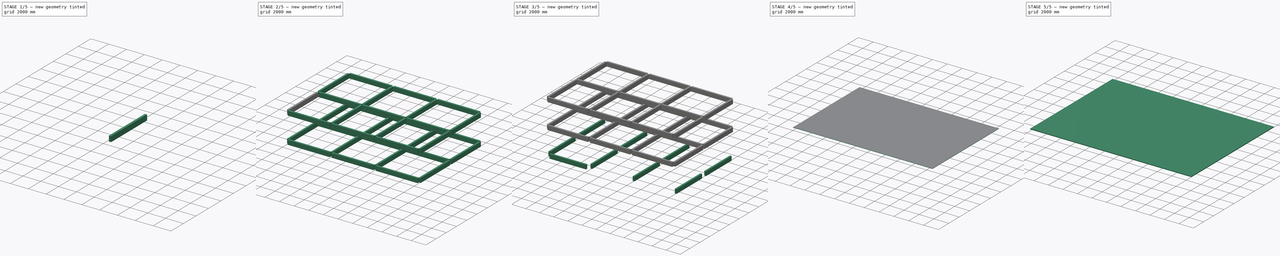
[diagram: build sequence overview — one tinted view per stage of 5, left to right]
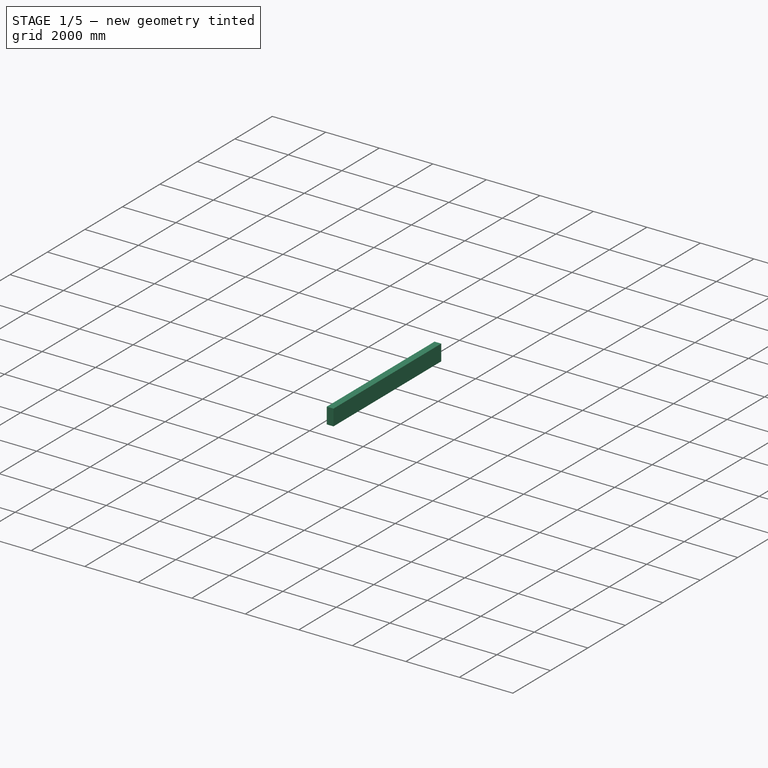
[diagram: stage 1 of 5 — iso view after this stage's code; geometry added in this stage tinted green]
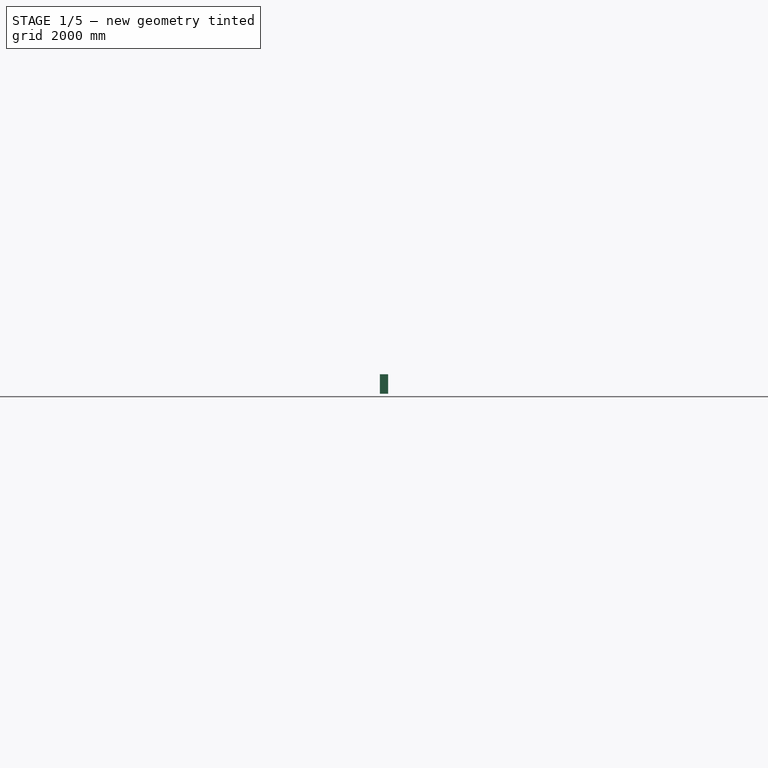
[diagram: stage 1 of 5 — front view after this stage's code; geometry added in this stage tinted green]
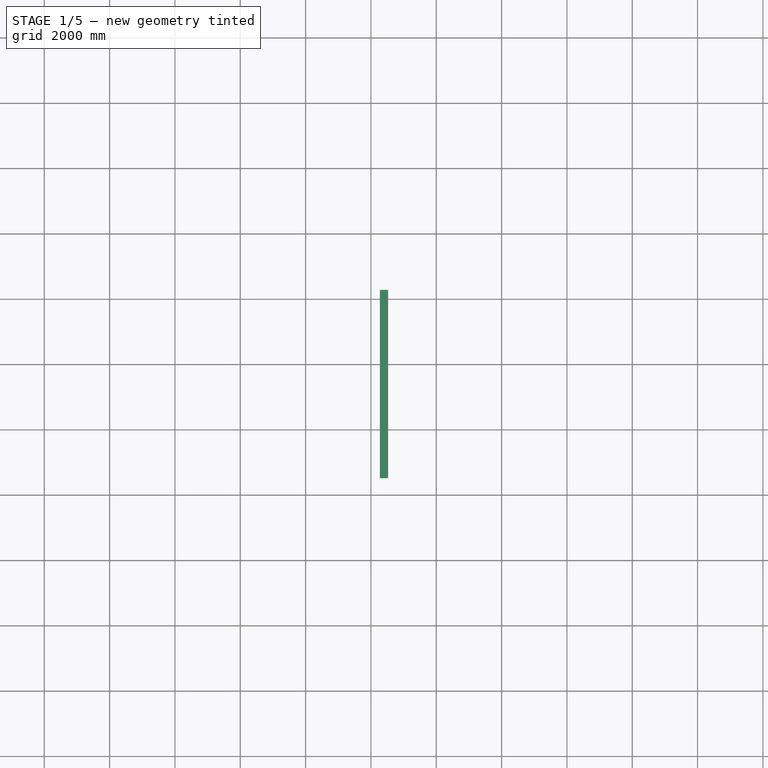
[diagram: stage 1 of 5 — top view after this stage's code; geometry added in this stage tinted green]
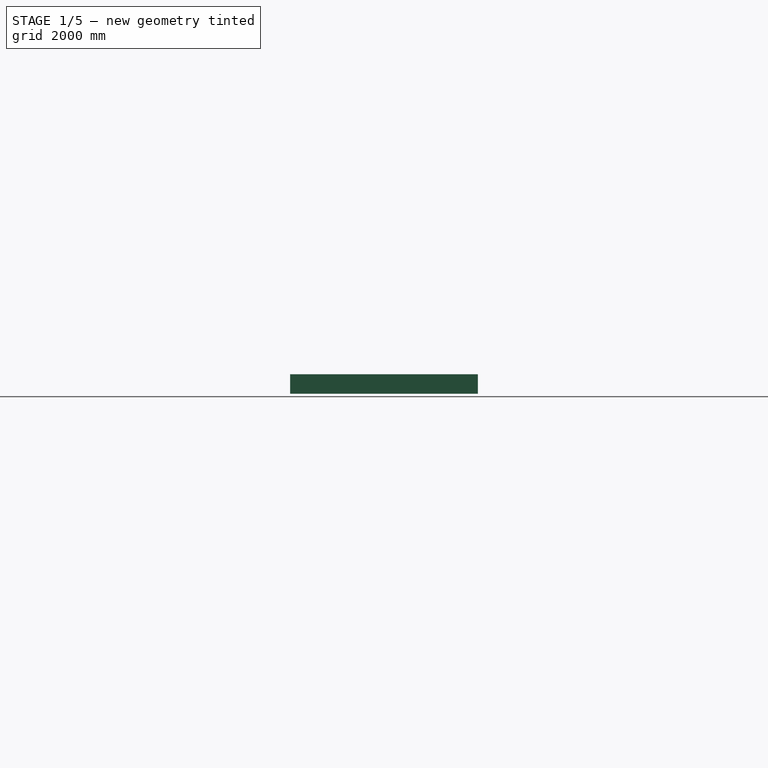
[diagram: stage 1 of 5 — right view after this stage's code; geometry added in this stage tinted green]
FCSTD DOCUMENT  (FreeCAD 0.16R6712 (Git))
Label: DOMINO_HOUSE_02
License: All rights reserved
LicenseURL: http://en.wikipedia.org/wiki/All_rights_reserved
objects: Sketcher::SketchObject×9, Part::Extrusion×9, Part::FeaturePython×6, Part::MultiFuse×3
note: 27 computed .brp shape members not serialized (recipe doc carries the construction recipe); baked Part::Feature solids carry a one-line shape summary decoded from their .brp

FEATURE [Sketcher::SketchObject] Sketch  label="BLOCO"
  sketch-geometry (4):
    g0: LineSegment StartX=0 StartY=0 StartZ=0 EndX=800 EndY=0 EndZ=0
    g1: LineSegment StartX=800 StartY=0 StartZ=0 EndX=800 EndY=800 EndZ=0
    g2: LineSegment StartX=800 StartY=800 StartZ=0 EndX=0 EndY=800 EndZ=0
    g3: LineSegment StartX=0 StartY=800 StartZ=0 EndX=0 EndY=0 EndZ=0
  constraints (11):
    c: Coincident(g0,g1)
    c: Coincident(g1,g2)
    c: Coincident(g2,g3)
    c: Coincident(g3,g0)
    c: Horizontal(g0)
    c: Horizontal(g2)
    c: Vertical(g1)
    c: Vertical(g3)
    c: Coincident(g0,g-1)
    c: Equal(g3,g0)
    c: Distance(g0) = 800
FEATURE [Part::Extrusion] Extrude_Sketch  label="BLOCO_Extrude"
  Base = -> Sketch
  Dir = (0,0,600)
  Solid = true
FEATURE [Sketcher::SketchObject] Sketch001  label="PILAR"
  ExternalGeometry = -> [Extrude_Sketch]
  Placement = pos=(0,0,600) rot=(0,0,1;0rad)
  sketch-geometry (6):
    g0: LineSegment StartX=275 StartY=525 StartZ=0 EndX=525 EndY=525 EndZ=0
    g1: LineSegment StartX=525 StartY=525 StartZ=0 EndX=525 EndY=275 EndZ=0
    g2: LineSegment StartX=525 StartY=275 StartZ=0 EndX=275 EndY=275 EndZ=0
    g3: LineSegment StartX=275 StartY=275 StartZ=0 EndX=275 EndY=525 EndZ=0
    g4: Circle [constr] CenterX=400 CenterY=400 CenterZ=0 NormalX=0 NormalY=0 NormalZ=1 Radius=125
    g5: Circle [constr] CenterX=400 CenterY=400 CenterZ=0 NormalX=0 NormalY=0 NormalZ=1 Radius=400
  constraints (17):
    c: Coincident(g0,g1)
    c: Coincident(g1,g2)
    c: Coincident(g2,g3)
    c: Coincident(g3,g0)
    c: Horizontal(g0)
    c: Horizontal(g2)
    c: Vertical(g1)
    c: Vertical(g3)
    c: Equal(g3,g2)
    c: Distance(g2) = 250
    c: Coincident(g4,g5)
    c: Tangent(g4,g0)
    c: Tangent(g4,g3)
    c: Tangent(g4,g2)
    c: Tangent(g5,g-3)
    c: Tangent(g5,g-4)
    c: Tangent(g5,g-5)
FEATURE [Part::Extrusion] Extrude_Sketch001  label="PILAR_Extrude"
  Base = -> Sketch001
  Dir = (0,0,3600)
  Solid = true
FEATURE [Part::FeaturePython] Array001  # Draft array (typed FeaturePython)
  Angle = 360
  ArrayType = 0
  Axis = (0,0,1)
  Base = -> Extrude_Sketch001
  Center = (0,0,0)
  Fuse = true
  IntervalAxis = (0,0,0)
  IntervalX = (6000,0,0)
  IntervalY = (0,6000,0)
  IntervalZ = (0,0,3600)
  NumberPolar = 1
  NumberX = 4
  NumberY = 3
  NumberZ = 2
FEATURE [Sketcher::SketchObject] Sketch005  label="VIGA-Y"
  ExternalGeometry = -> [Array001]
  Placement = pos=(0,525,0) rot=(0,0.707107,0.707107;3.14159rad)
  Support = -> Array001 [Face14]
  sketch-geometry (4):
    g0: LineSegment StartX=-525 StartY=7800 StartZ=0 EndX=-275 EndY=7800 EndZ=0
    g1: LineSegment StartX=-275 StartY=7800 StartZ=0 EndX=-275 EndY=7200 EndZ=0
    g2: LineSegment StartX=-275 StartY=7200 StartZ=0 EndX=-525 EndY=7200 EndZ=0
    g3: LineSegment StartX=-525 StartY=7200 StartZ=0 EndX=-525 EndY=7800 EndZ=0
  constraints (11):
    c: Coincident(g0,g1)
    c: Coincident(g1,g2)
    c: Coincident(g2,g3)
    c: Coincident(g3,g0)
    c: Horizontal(g0)
    c: Horizontal(g2)
    c: Vertical(g1)
    c: Vertical(g3)
    c: Coincident(g-3,g0)
    c: Coincident(g-3,g0)
    c: Distance(g3) = 600
FEATURE [Part::Extrusion] Extrude_Sketch005  label="VIGA-Y_Extrude"
  Base = -> Sketch005
  Dir = (0,5750,0)
  Solid = true
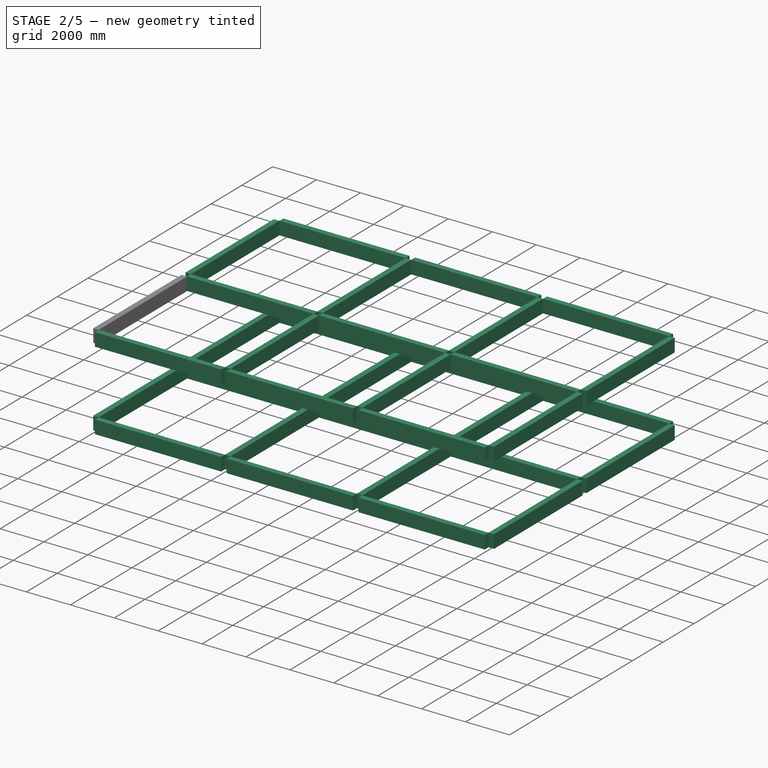
[diagram: stage 2 of 5 — iso view after this stage's code; geometry added in this stage tinted green]
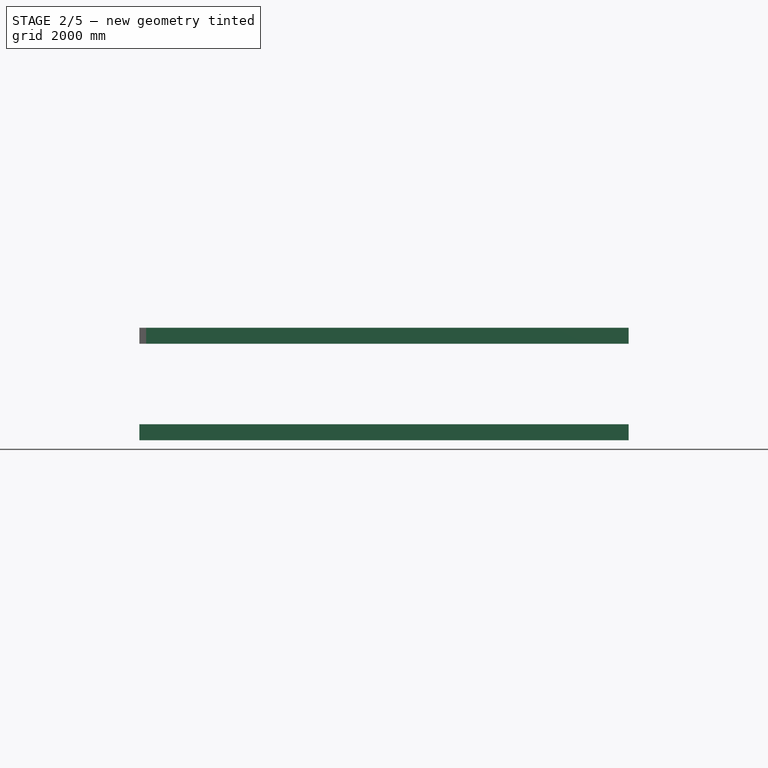
[diagram: stage 2 of 5 — front view after this stage's code; geometry added in this stage tinted green]
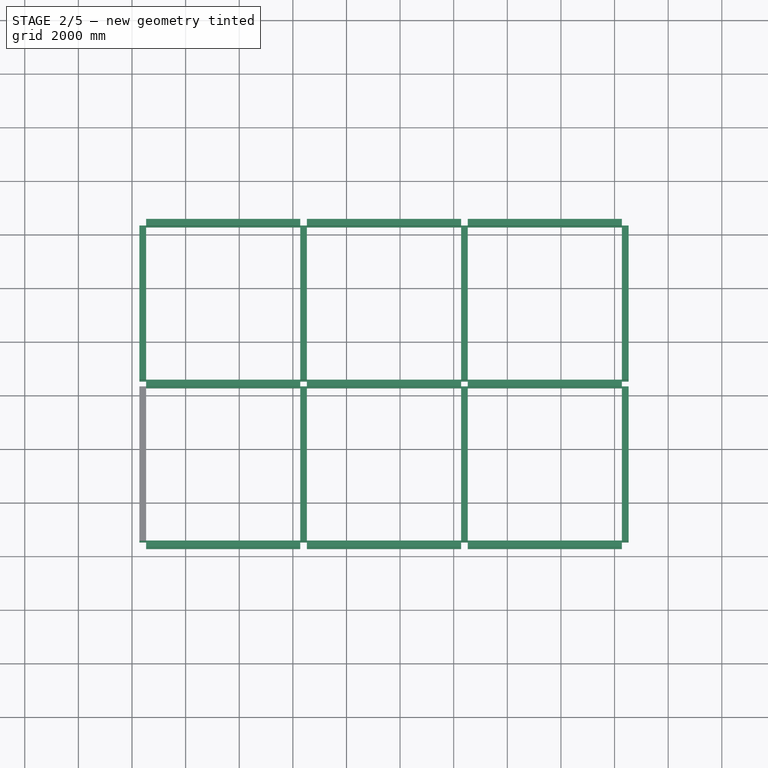
[diagram: stage 2 of 5 — top view after this stage's code; geometry added in this stage tinted green]
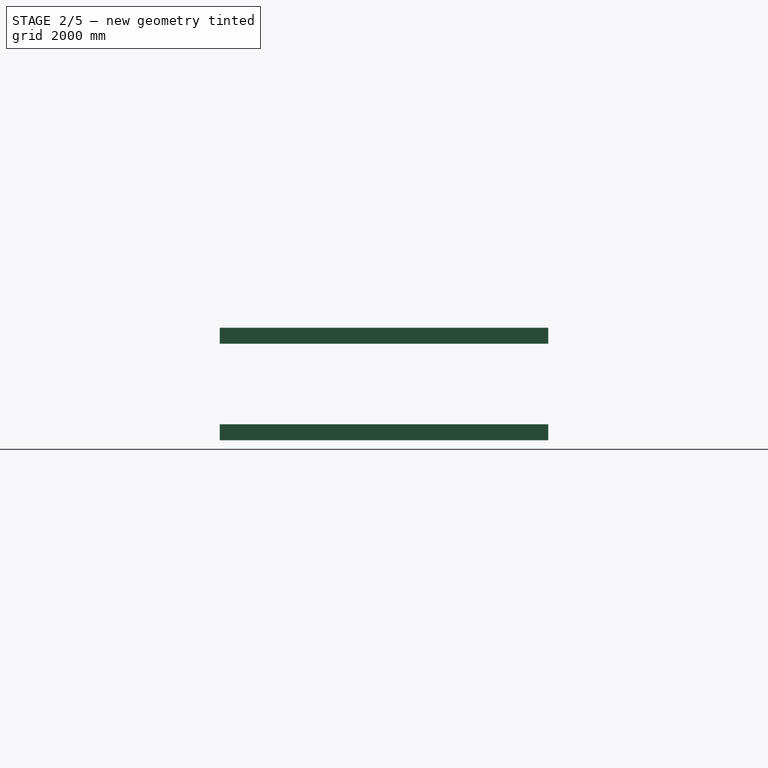
[diagram: stage 2 of 5 — right view after this stage's code; geometry added in this stage tinted green]
FEATURE [Sketcher::SketchObject] Sketch004  label="VIGA-X"
  ExternalGeometry = -> [Array001]
  Placement = pos=(525,0,0) rot=(0.57735,0.57735,0.57735;2.0944rad)
  Support = -> Array001 [Face16]
  sketch-geometry (4):
    g0: LineSegment StartX=275 StartY=7800 StartZ=0 EndX=525 EndY=7800 EndZ=0
    g1: LineSegment StartX=525 StartY=7800 StartZ=0 EndX=525 EndY=7200 EndZ=0
    g2: LineSegment StartX=525 StartY=7200 StartZ=0 EndX=275 EndY=7200 EndZ=0
    g3: LineSegment StartX=275 StartY=7200 StartZ=0 EndX=275 EndY=7800 EndZ=0
  constraints (11):
    c: Coincident(g0,g1)
    c: Coincident(g1,g2)
    c: Coincident(g2,g3)
    c: Coincident(g3,g0)
    c: Horizontal(g0)
    c: Horizontal(g2)
    c: Vertical(g1)
    c: Vertical(g3)
    c: Coincident(g0,g-3)
    c: Coincident(g-3,g0)
    c: Distance(g3) = 600
FEATURE [Part::Extrusion] Extrude_Sketch004  label="VIGA-X001"
  Base = -> Sketch004
  Dir = (5750,0,0)
  Solid = true
FEATURE [Part::FeaturePython] Array004  # Draft array (typed FeaturePython)
  Angle = 360
  ArrayType = 0
  Axis = (0,0,1)
  Base = -> Extrude_Sketch004
  Center = (0,0,0)
  Fuse = true
  IntervalAxis = (0,0,0)
  IntervalX = (6000,0,0)
  IntervalY = (0,6000,0)
  IntervalZ = (0,0,-3600)
  NumberPolar = 1
  NumberX = 3
  NumberY = 3
  NumberZ = 2
FEATURE [Part::FeaturePython] Array005  # Draft array (typed FeaturePython)
  Angle = 360
  ArrayType = 0
  Axis = (0,0,1)
  Base = -> Extrude_Sketch005
  Center = (0,0,0)
  Fuse = false
  IntervalAxis = (0,0,0)
  IntervalX = (6000,0,0)
  IntervalY = (0,6000,0)
  IntervalZ = (0,0,-3600)
  NumberPolar = 1
  NumberX = 4
  NumberY = 2
  NumberZ = 2
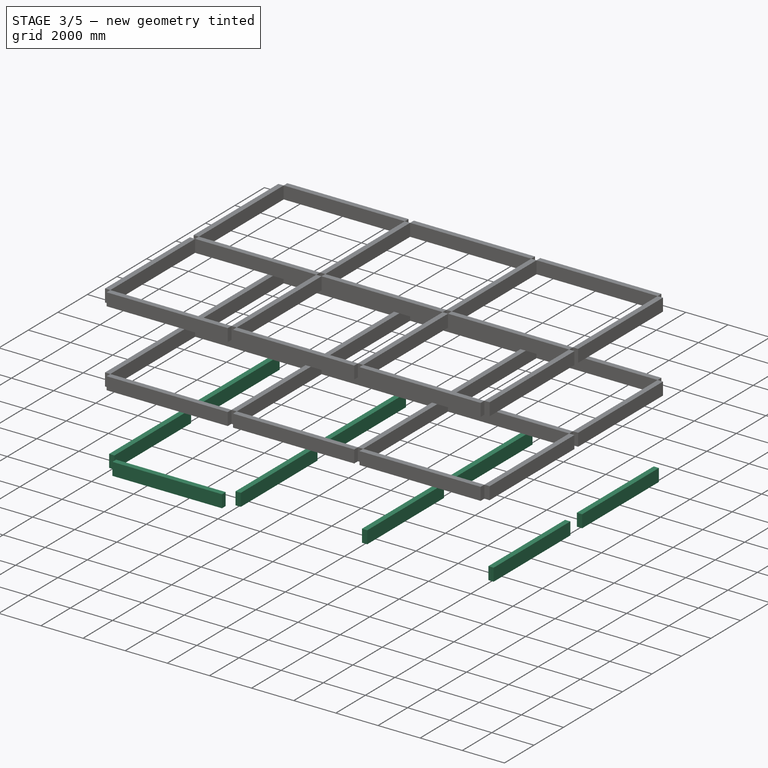
[diagram: stage 3 of 5 — iso view after this stage's code; geometry added in this stage tinted green]
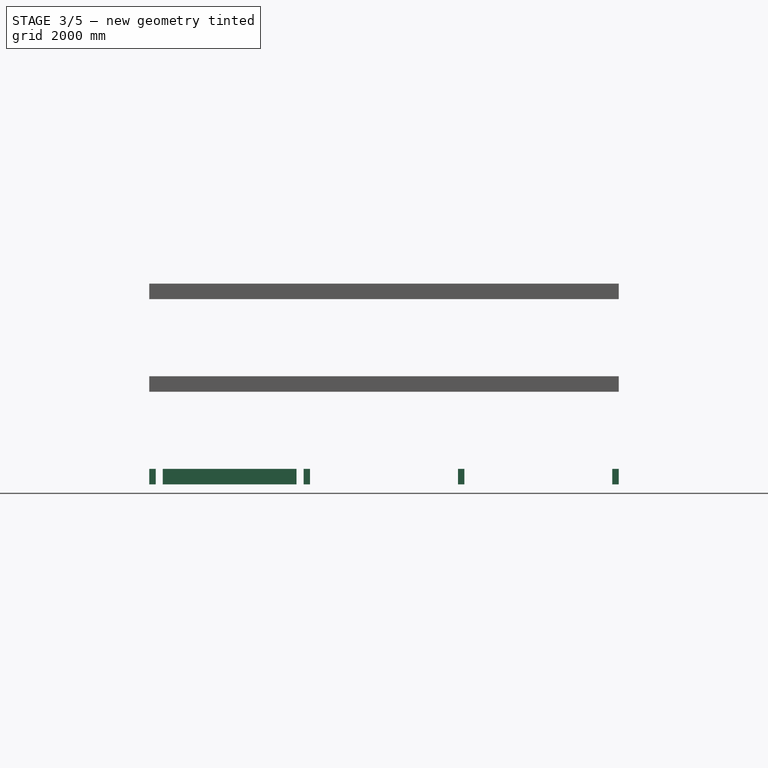
[diagram: stage 3 of 5 — front view after this stage's code; geometry added in this stage tinted green]
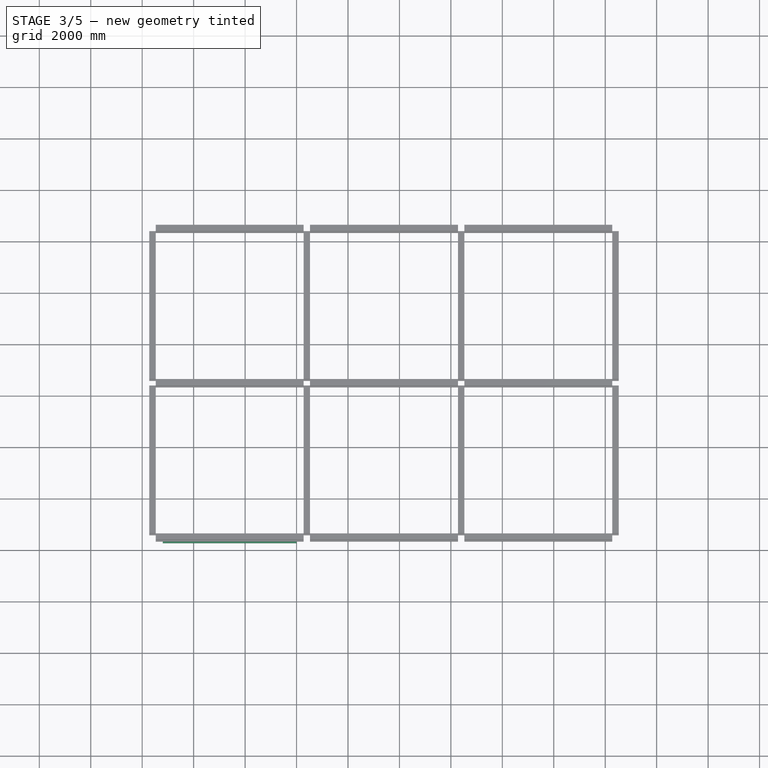
[diagram: stage 3 of 5 — top view after this stage's code; geometry added in this stage tinted green]
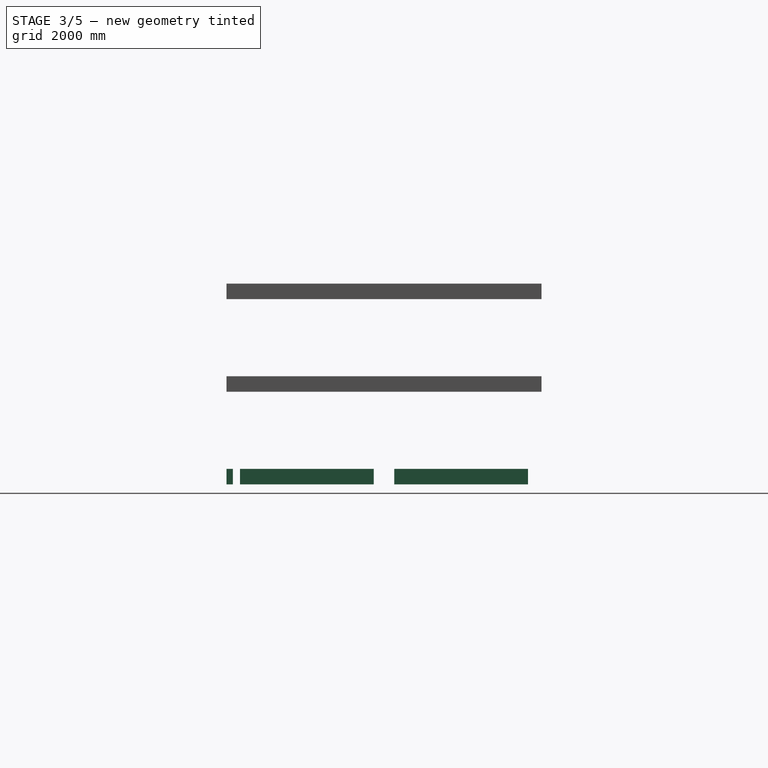
[diagram: stage 3 of 5 — right view after this stage's code; geometry added in this stage tinted green]
FEATURE [Sketcher::SketchObject] Sketch002  label="BALDRAME-X"
  ExternalGeometry = -> [Extrude_Sketch]
  Placement = pos=(800,0,0) rot=(0.57735,0.57735,0.57735;2.0944rad)
  sketch-geometry (6):
    g0: LineSegment StartX=275 StartY=600 StartZ=0 EndX=525 EndY=600 EndZ=0
    g1: LineSegment StartX=525 StartY=600 StartZ=0 EndX=525 EndY=0 EndZ=0
    g2: LineSegment StartX=525 StartY=0 StartZ=0 EndX=275 EndY=0 EndZ=0
    g3: LineSegment StartX=275 StartY=0 StartZ=0 EndX=275 EndY=600 EndZ=0
    g4: GeomPoint [constr] X=400 Y=0 Z=0
    g5: GeomPoint [constr] X=400 Y=600 Z=0
  constraints (14):
    c: Coincident(g0,g1)
    c: Coincident(g1,g2)
    c: Coincident(g2,g3)
    c: Coincident(g3,g0)
    c: Horizontal(g0)
    c: Horizontal(g2)
    c: Vertical(g1)
    c: Vertical(g3)
    c: Equal(g-4,g3)
    c: Equal(g3,g1)
    c: Symmetric(g2,g2,g4)
    c: Symmetric(g0,g0,g5)
    c: Symmetric(g-3,g-3,g5)
    c: Distance(g0,g0) = 250
FEATURE [Part::FeaturePython] Array  label="BLOCO_Extrude001"  # Draft array (typed FeaturePython)
  Angle = 360
  ArrayType = 0
  Axis = (0,0,1)
  Base = -> Extrude_Sketch
  Center = (0,0,0)
  Fuse = true
  IntervalAxis = (0,0,0)
  IntervalX = (6000,0,0)
  IntervalY = (0,6000,0)
  IntervalZ = (0,0,0)
  NumberPolar = 1
  NumberX = 4
  NumberY = 3
  NumberZ = 1
FEATURE [Part::Extrusion] Extrude_Sketch002  label="BALDRAME-X001"
  Base = -> Sketch002
  Dir = (5200,0,0)
  Solid = true
FEATURE [Sketcher::SketchObject] Sketch003  label="BALDRAME-Y"
  ExternalGeometry = -> [Array]
  Placement = pos=(0,6000,0) rot=(1,0,0;1.5708rad)
  sketch-geometry (6):
    g0: LineSegment StartX=275 StartY=600 StartZ=0 EndX=525 EndY=600 EndZ=0
    g1: LineSegment StartX=525 StartY=600 StartZ=0 EndX=525 EndY=-1e-12 EndZ=0
    g2: LineSegment StartX=525 StartY=-1e-12 StartZ=0 EndX=275 EndY=-1e-12 EndZ=0
    g3: LineSegment StartX=275 StartY=-1e-12 StartZ=0 EndX=275 EndY=600 EndZ=0
    g4: GeomPoint [constr] X=400 Y=600 Z=0
    g5: GeomPoint [constr] X=400 Y=-1e-12 Z=0
  constraints (14):
    c: Coincident(g0,g1)
    c: Coincident(g1,g2)
    c: Coincident(g2,g3)
    c: Coincident(g3,g0)
    c: Horizontal(g0)
    c: Horizontal(g2)
    c: Vertical(g1)
    c: Vertical(g3)
    c: Symmetric(g0,g0,g4)
    c: Symmetric(g2,g2,g5)
    c: Equal(g3,g1)
    c: Equal(g1,g-3)
    c: Symmetric(g-5,g-5,g5)
    c: Distance(g2,g1) = 250
FEATURE [Part::Extrusion] Extrude_Sketch003  label="BALDRAME-Y001"
  Base = -> Sketch003
  Dir = (0,-5200,0)
  Solid = true
FEATURE [Part::FeaturePython] Array003  label="BALDRAME-Y002"  # Draft array (typed FeaturePython)
  Angle = 360
  ArrayType = 0
  Axis = (0,0,1)
  Base = -> Extrude_Sketch003
  Center = (0,0,0)
  Fuse = false
  IntervalAxis = (0,0,0)
  IntervalX = (6000,0,0)
  IntervalY = (0,6000,0)
  IntervalZ = (0,0,0)
  NumberPolar = 1
  NumberX = 4
  NumberY = 2
  NumberZ = 1
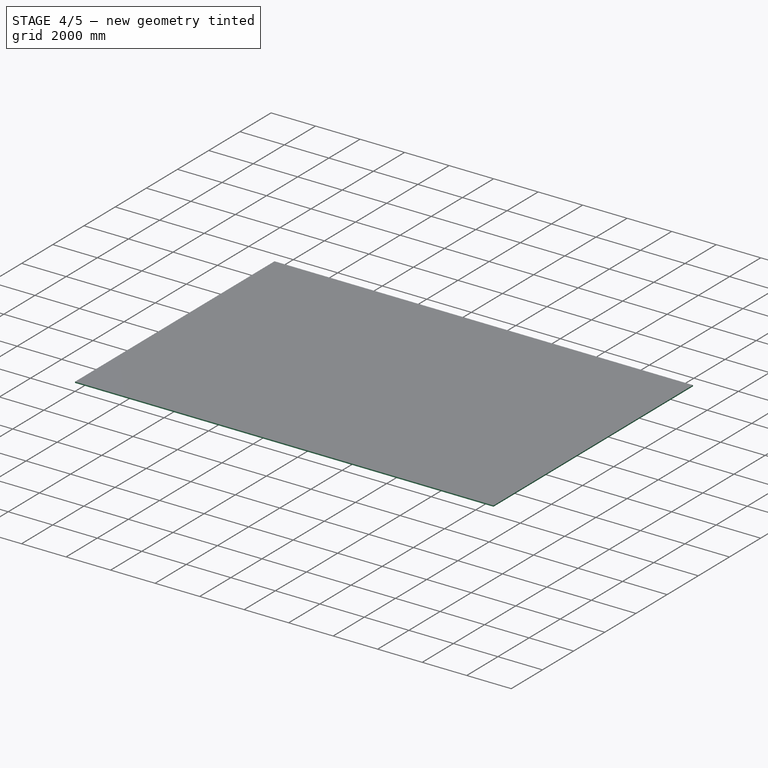
[diagram: stage 4 of 5 — iso view after this stage's code; geometry added in this stage tinted green]
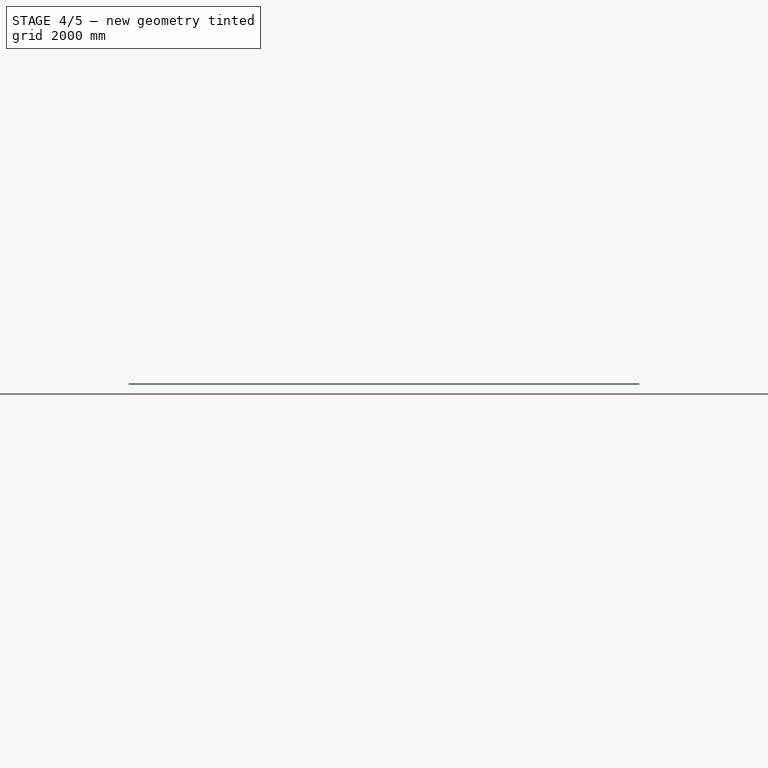
[diagram: stage 4 of 5 — front view after this stage's code; geometry added in this stage tinted green]
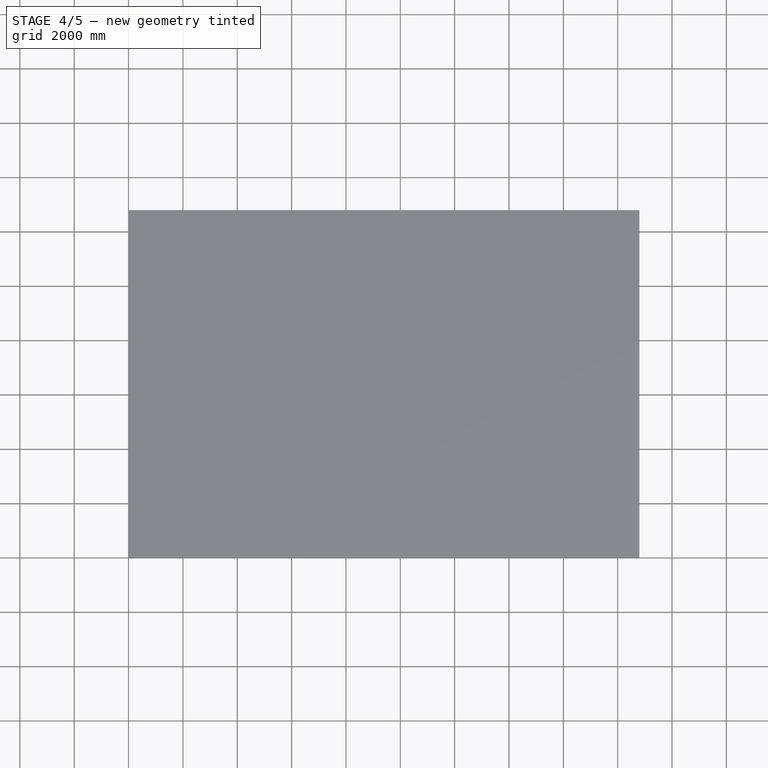
[diagram: stage 4 of 5 — top view after this stage's code; geometry added in this stage tinted green]
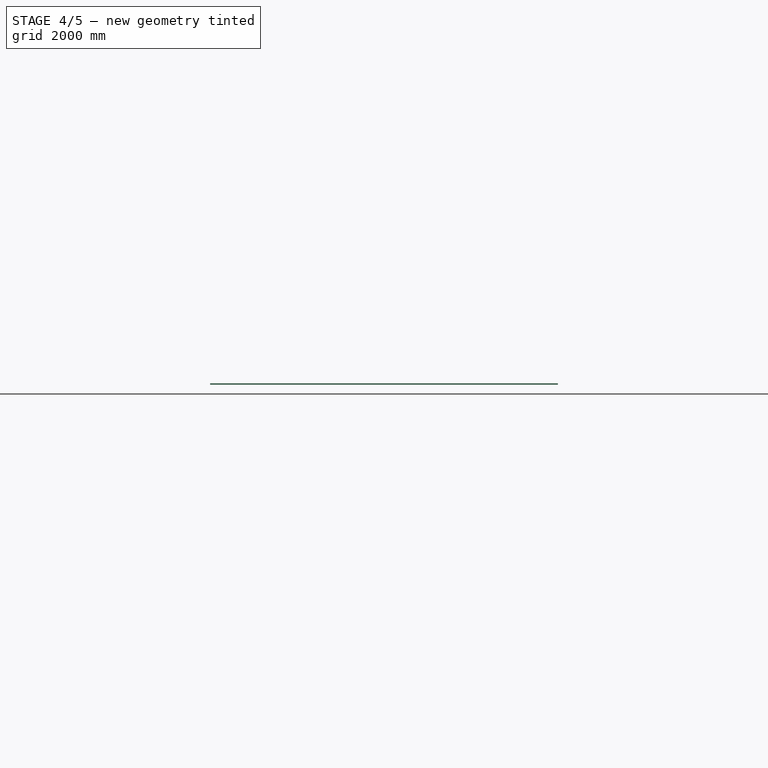
[diagram: stage 4 of 5 — right view after this stage's code; geometry added in this stage tinted green]
FEATURE [Part::FeaturePython] Array002  label="BALDRAME-X002"  # Draft array (typed FeaturePython)
  Angle = 360
  ArrayType = 0
  Axis = (0,0,1)
  Base = -> Extrude_Sketch002
  Center = (0,0,0)
  Fuse = false
  IntervalAxis = (0,0,0)
  IntervalX = (6000,0,0)
  IntervalY = (0,6000,0)
  IntervalZ = (0,0,0)
  NumberPolar = 1
  NumberX = 3
  NumberY = 3
  NumberZ = 1
FEATURE [Part::MultiFuse] Fusion  label="SISTEMA-ESTRUTURAL"
  Shapes = -> [Array005,Array001,Array002,Array,Array003,Array004]
FEATURE [Sketcher::SketchObject] Sketch006  label="PISO"
  Placement = pos=(0,0,600) rot=(0,0,1;0rad)
  Support = -> Fusion [Face45]
  sketch-geometry (4):
    g0: LineSegment StartX=0 StartY=0 StartZ=0 EndX=18800 EndY=0 EndZ=0
    g1: LineSegment StartX=18800 StartY=0 StartZ=0 EndX=18800 EndY=12800 EndZ=0
    g2: LineSegment StartX=18800 StartY=12800 StartZ=0 EndX=0 EndY=12800 EndZ=0
    g3: LineSegment StartX=0 StartY=12800 StartZ=0 EndX=0 EndY=0 EndZ=0
  constraints (9):
    c: Coincident(g0,g1)
    c: Coincident(g1,g2)
    c: Coincident(g2,g3)
    c: Coincident(g3,g0)
    c: Horizontal(g0)
    c: Horizontal(g2)
    c: Vertical(g1)
    c: Vertical(g3)
    c: Coincident(g0,g-1)
FEATURE [Part::Extrusion] Extrude_Sketch006  label="PISO_Extrude"
  Base = -> Sketch006
  Dir = (0,0,50)
  Solid = true
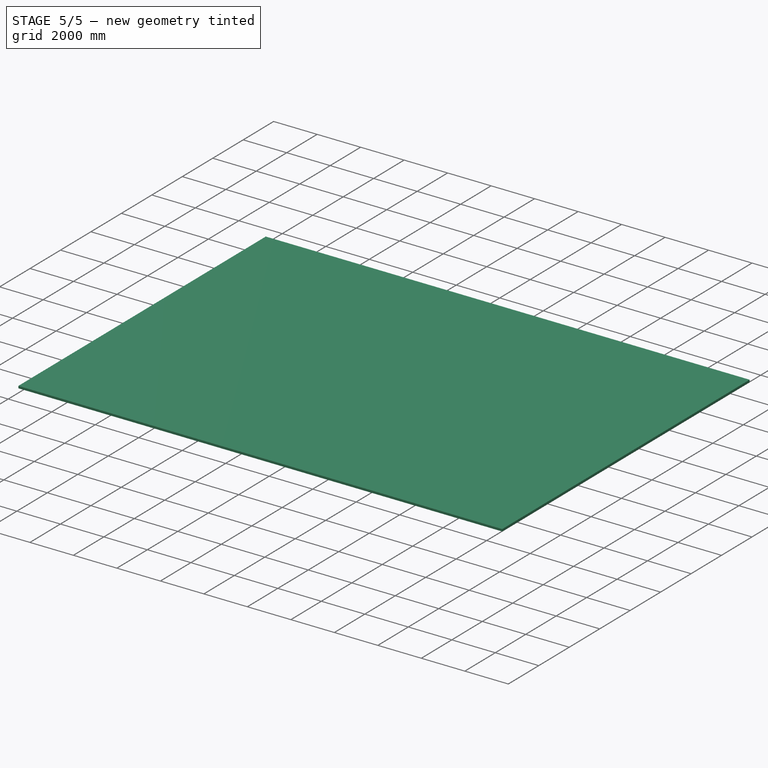
[diagram: stage 5 of 5 — iso view after this stage's code; geometry added in this stage tinted green]
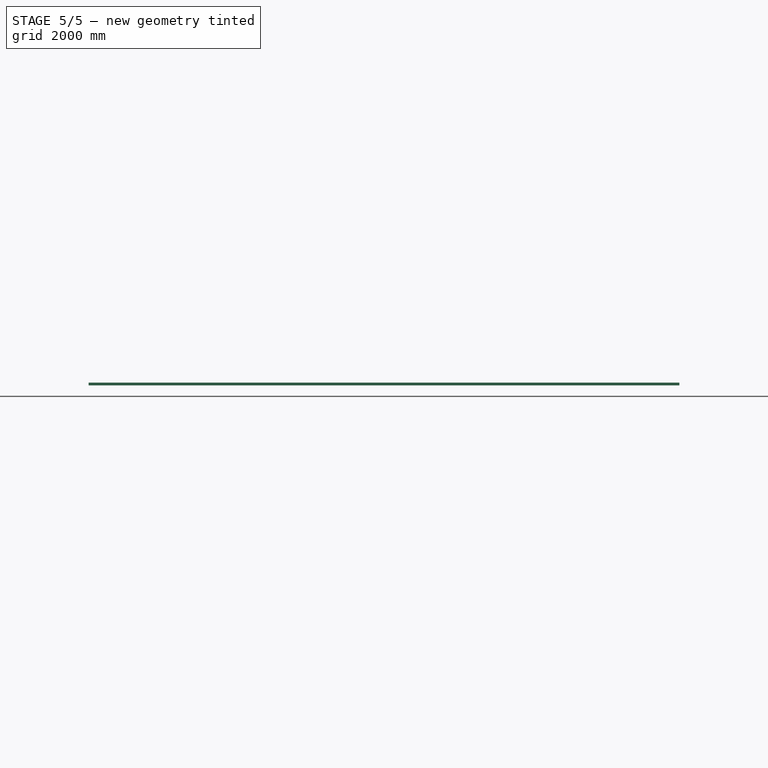
[diagram: stage 5 of 5 — front view after this stage's code; geometry added in this stage tinted green]
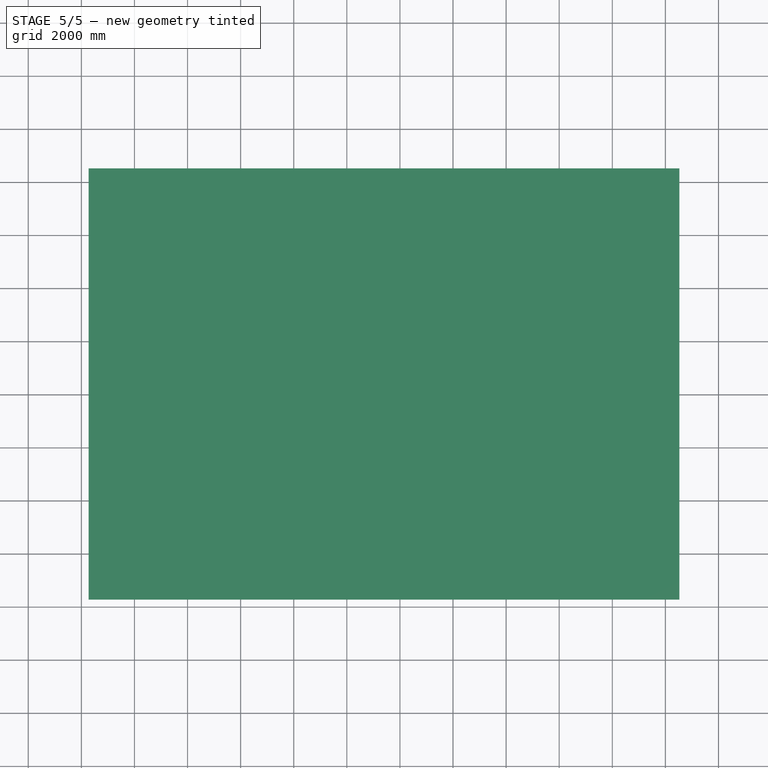
[diagram: stage 5 of 5 — top view after this stage's code; geometry added in this stage tinted green]
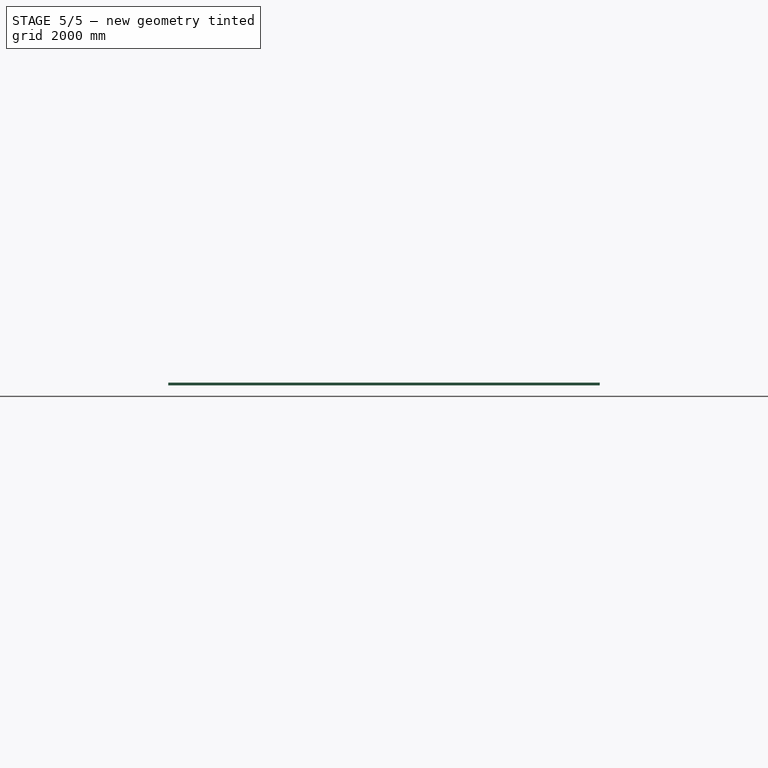
[diagram: stage 5 of 5 — right view after this stage's code; geometry added in this stage tinted green]
FEATURE [Part::MultiFuse] Fusion001
  Shapes = -> [Extrude_Sketch006,Fusion]
FEATURE [Sketcher::SketchObject] Sketch007  label="LAJE"
  ExternalGeometry = -> [Fusion001]
  Placement = pos=(0,0,4200) rot=(0,0,1;0rad)
  Support = -> Fusion001 [Face205]
  sketch-geometry (8):
    g0: LineSegment StartX=275 StartY=275 StartZ=0 EndX=6525 EndY=275 EndZ=0
    g1: LineSegment StartX=6525 StartY=275 StartZ=0 EndX=6525 EndY=6275 EndZ=0
    g2: LineSegment StartX=6525 StartY=6275 StartZ=0 EndX=12275 EndY=6275 EndZ=0
    g3: LineSegment StartX=12275 StartY=6275 StartZ=0 EndX=12275 EndY=275 EndZ=0
    g4: LineSegment StartX=12275 StartY=275 StartZ=0 EndX=18525 EndY=275 EndZ=0
    g5: LineSegment StartX=18525 StartY=275 StartZ=0 EndX=18525 EndY=12525 EndZ=0
    g6: LineSegment StartX=18525 StartY=12525 StartZ=0 EndX=275 EndY=12525 EndZ=0
    g7: LineSegment StartX=275 StartY=12525 StartZ=0 EndX=275 EndY=275 EndZ=0
  constraints (22):
    c: Horizontal(g0)
    c: Coincident(g0,g1)
    c: Vertical(g1)
    c: Coincident(g1,g2)
    c: Horizontal(g2)
    c: Coincident(g2,g3)
    c: Vertical(g3)
    c: Coincident(g3,g4)
    c: Horizontal(g4)
    c: Coincident(g4,g5)
    c: Vertical(g5)
    c: Coincident(g5,g6)
    c: Horizontal(g6)
    c: Coincident(g6,g7)
    c: Vertical(g7)
    c: Coincident(g0,g7)
    c: Coincident(g0,g-4)
    c: Coincident(g0,g-5)
    c: Coincident(g3,g-6)
    c: Coincident(g4,g-3)
    c: Coincident(g6,g-4)
    c: Coincident(g2,g-7)
FEATURE [Part::Extrusion] Extrude_Sketch007  label="LAGE"
  Base = -> Sketch007
  Dir = (0,0,200)
  Solid = true
FEATURE [Part::MultiFuse] Fusion002
  Shapes = -> [Extrude_Sketch007,Fusion001]
FEATURE [Sketcher::SketchObject] Sketch008
  ExternalGeometry = -> [Fusion002]
  Placement = pos=(0,0,7800) rot=(0,0,1;0rad)
  Support = -> Fusion002 [Face204]
  sketch-geometry (4):
    g0: LineSegment StartX=-1725 StartY=-1725 StartZ=0 EndX=20525 EndY=-1725 EndZ=0
    g1: LineSegment StartX=20525 StartY=-1725 StartZ=0 EndX=20525 EndY=14525 EndZ=0
    g2: LineSegment StartX=20525 StartY=14525 StartZ=0 EndX=-1725 EndY=14525 EndZ=0
    g3: LineSegment StartX=-1725 StartY=14525 StartZ=0 EndX=-1725 EndY=-1725 EndZ=0
  constraints (12):
    c: Coincident(g0,g1)
    c: Coincident(g1,g2)
    c: Coincident(g2,g3)
    c: Coincident(g3,g0)
    c: Horizontal(g0)
    c: Horizontal(g2)
    c: Vertical(g1)
    c: Vertical(g3)
    c: DistanceX(g-6,g1) = 2000
    c: DistanceY(g-6,g1) = 2000
    c: DistanceX(g0,g-4) = 2000
    c: DistanceY(g0,g-4) = 2000
FEATURE [Part::Extrusion] Extrude_Sketch008  label="Sketch008_Extrude"
  Base = -> Sketch008
  Dir = (0,0,100)
  Solid = true
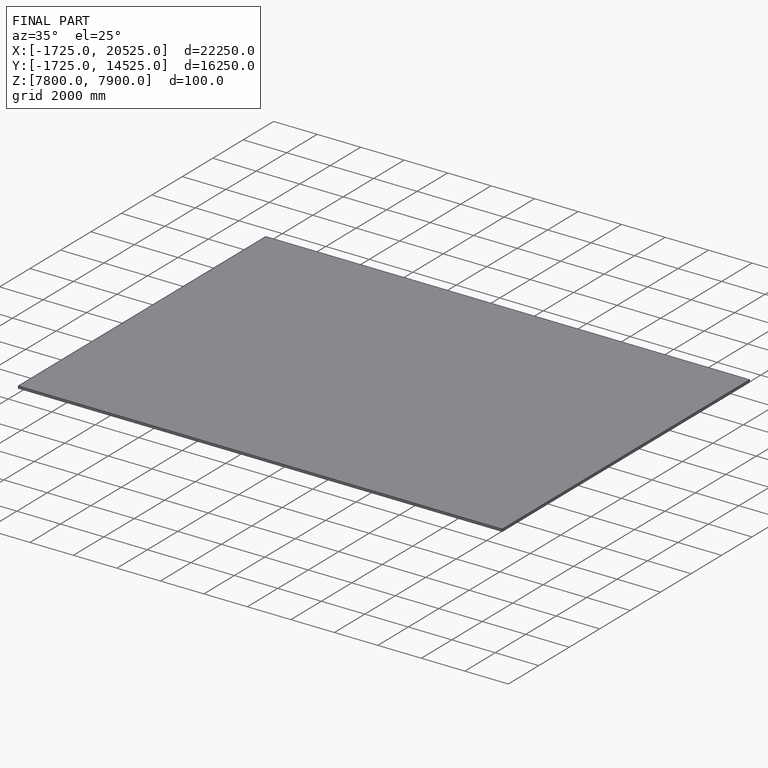
[diagram: finished part — iso view with bounding-box wireframe]
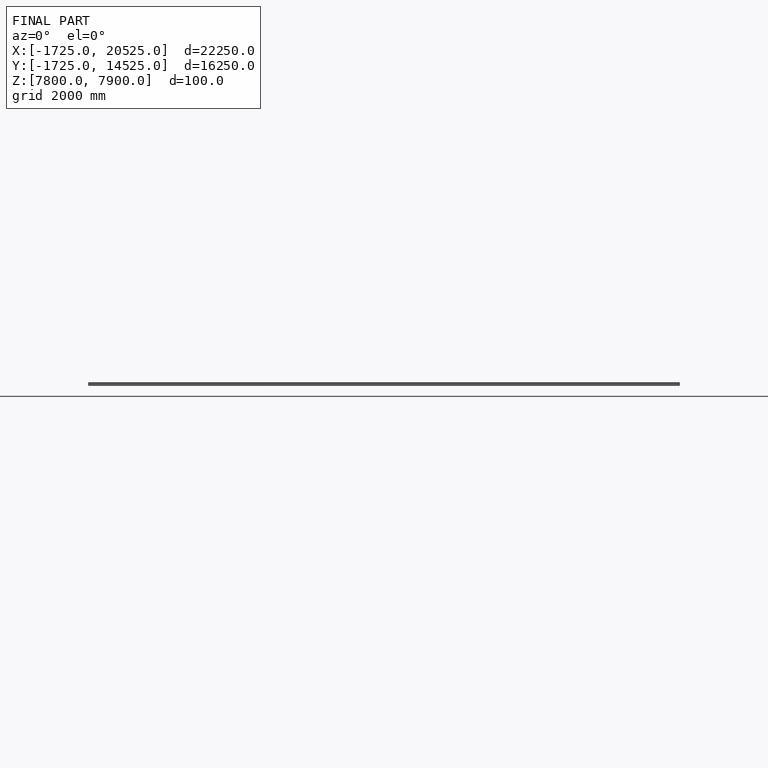
[diagram: finished part — front view with bounding-box wireframe]
